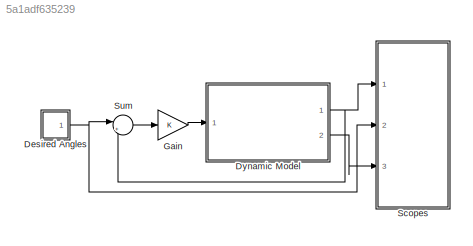
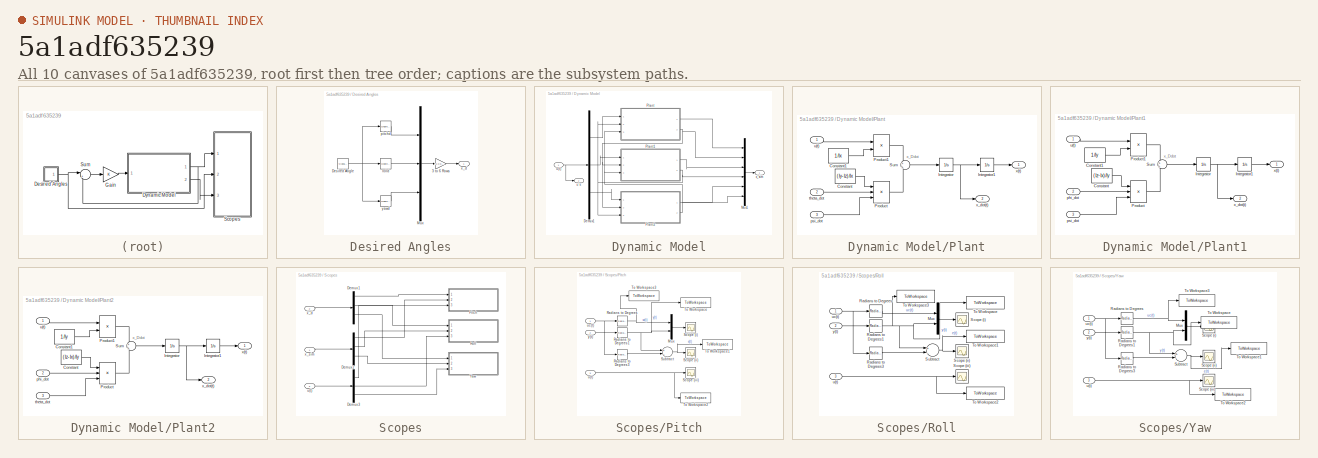
[diagram: thumbnail index - all 10 canvases of the model, root first then tree order]
MODEL slx_5a1adf635239
KIND model
CONFIG AbsTol = auto
CONFIG EnableMultiTasking = off
CONFIG FixedStep = auto
CONFIG MaxStep = auto
CONFIG MinStep = auto
CONFIG RelTol = 1e-3
CONFIG SampleTimeConstraint = Unconstrained
CONFIG Solver = VariableStepAuto
CONFIG SolverName = VariableStepAuto
CONFIG StartTime = 0.0
CONFIG StopTime = 100
BLOCK [SubSystem] Desired Angles
  Ports = [0, 1]
  RequestExecContextInheritance = off
BLOCK [Gain] Desired Angles/3 to 6 Rows
  Gain = [1 0 0; 0 0 0; 0 1 0; 0 0 0; 0 0 1; 0 0 0];
  Multiplication = Matrix(K*u)
  OutDataTypeStr = Inherit: Inherit via internal rule
  ParamDataTypeStr = Inherit: Inherit via internal rule
  SaturateOnIntegerOverflow = off
BLOCK [SignalGenerator] Desired Angles/Desired Angle
  Amplitude = 5
  Frequency = 0.05
  Ports = [0, 1]
  WaveForm = square
BLOCK [Mux] Desired Angles/Mux
  DisplayOption = bar
  Inputs = 3
  Ports = [3, 1]
BLOCK [Reference] Desired Angles/pitchd  REF=simulink_extras/Transformations/Degrees to
Radians
  Ports = [1, 1]
  SourceBlock = simulink_extras/Transformations/Degrees to\nRadians
  SourceProductBaseCode = SL
  SourceProductName = Simulink
  SourceType = DegreesToRadians
BLOCK [Reference] Desired Angles/rolld  REF=simulink_extras/Transformations/Degrees to
Radians
  Ports = [1, 1]
  SourceBlock = simulink_extras/Transformations/Degrees to\nRadians
  SourceProductBaseCode = SL
  SourceProductName = Simulink
  SourceType = DegreesToRadians
BLOCK [Outport] Desired Angles/x_d
  IconDisplay = Port number
  VectorParamsAs1DForOutWhenUnconnected = off
BLOCK [Reference] Desired Angles/yawd  REF=simulink_extras/Transformations/Degrees to
Radians
  Ports = [1, 1]
  SourceBlock = simulink_extras/Transformations/Degrees to\nRadians
  SourceProductBaseCode = SL
  SourceProductName = Simulink
  SourceType = DegreesToRadians
BLOCK [SubSystem] Dynamic Model
  Ports = [1, 2]
  RequestExecContextInheritance = off
BLOCK [Demux] Dynamic Model/Demux1
  DisplayOption = bar
  Outputs = 3
  Ports = [1, 3]
BLOCK [Mux] Dynamic Model/Mux1
  DisplayOption = bar
  Inputs = 6
  Ports = [6, 1]
BLOCK [SubSystem] Dynamic Model/Plant
  Ports = [3, 2]
  RequestExecContextInheritance = off
BLOCK [Constant] Dynamic Model/Plant/Constant
  Value = (Iy-Iz)/Ix
BLOCK [Constant] Dynamic Model/Plant/Constant1
  Value = 1/Ix
BLOCK [Integrator] Dynamic Model/Plant/Integrator
  Ports = [1, 1]
BLOCK [Integrator] Dynamic Model/Plant/Integrator1
  Ports = [1, 1]
BLOCK [Product] Dynamic Model/Plant/Product
  InputSameDT = off
  Inputs = 3
  OutDataTypeStr = Inherit: Inherit via internal rule
  Ports = [3, 1]
  RndMeth = Floor
  SaturateOnIntegerOverflow = off
BLOCK [Product] Dynamic Model/Plant/Product1
  InputSameDT = off
  OutDataTypeStr = Inherit: Inherit via internal rule
  Ports = [2, 1]
  RndMeth = Floor
  SaturateOnIntegerOverflow = off
BLOCK [Sum] Dynamic Model/Plant/Sum
  IconShape = round
  InputSameDT = off
  Inputs = +|+
  OutDataTypeStr = Inherit: Inherit via internal rule
  Ports = [2, 1]
  SaturateOnIntegerOverflow = off
BLOCK [Inport] Dynamic Model/Plant/psi_dot
  IconDisplay = Port number
  Port = 3
BLOCK [Inport] Dynamic Model/Plant/theta_dot
  IconDisplay = Port number
  Port = 2
BLOCK [Inport] Dynamic Model/Plant/u(t)
  IconDisplay = Port number
BLOCK [Outport] Dynamic Model/Plant/x(t)
  IconDisplay = Port number
  VectorParamsAs1DForOutWhenUnconnected = off
BLOCK [Outport] Dynamic Model/Plant/x_dot(t)
  IconDisplay = Port number
  Port = 2
  VectorParamsAs1DForOutWhenUnconnected = off
BLOCK [SubSystem] Dynamic Model/Plant1
  Ports = [3, 2]
  RequestExecContextInheritance = off
BLOCK [Constant] Dynamic Model/Plant1/Constant
  Value = (Iz-Ix)/Iy
BLOCK [Constant] Dynamic Model/Plant1/Constant1
  Value = 1/Iy
BLOCK [Integrator] Dynamic Model/Plant1/Integrator
  Ports = [1, 1]
BLOCK [Integrator] Dynamic Model/Plant1/Integrator1
  Ports = [1, 1]
BLOCK [Product] Dynamic Model/Plant1/Product
  InputSameDT = off
  Inputs = 3
  OutDataTypeStr = Inherit: Inherit via internal rule
  Ports = [3, 1]
  RndMeth = Floor
  SaturateOnIntegerOverflow = off
BLOCK [Product] Dynamic Model/Plant1/Product1
  InputSameDT = off
  OutDataTypeStr = Inherit: Inherit via internal rule
  Ports = [2, 1]
  RndMeth = Floor
  SaturateOnIntegerOverflow = off
BLOCK [Sum] Dynamic Model/Plant1/Sum
  IconShape = round
  InputSameDT = off
  Inputs = +|+
  OutDataTypeStr = Inherit: Inherit via internal rule
  Ports = [2, 1]
  SaturateOnIntegerOverflow = off
BLOCK [Inport] Dynamic Model/Plant1/phi_dot
  IconDisplay = Port number
  Port = 2
BLOCK [Inport] Dynamic Model/Plant1/psi_dot
  IconDisplay = Port number
  Port = 3
BLOCK [Inport] Dynamic Model/Plant1/u(t)
  IconDisplay = Port number
BLOCK [Outport] Dynamic Model/Plant1/x(t)
  IconDisplay = Port number
  VectorParamsAs1DForOutWhenUnconnected = off
BLOCK [Outport] Dynamic Model/Plant1/x_dot(t)
  IconDisplay = Port number
  Port = 2
  VectorParamsAs1DForOutWhenUnconnected = off
BLOCK [SubSystem] Dynamic Model/Plant2
  Ports = [3, 2]
  RequestExecContextInheritance = off
BLOCK [Constant] Dynamic Model/Plant2/Constant
  Value = (Iz-Ix)/Iy
BLOCK [Constant] Dynamic Model/Plant2/Constant1
  Value = 1/Iy
BLOCK [Integrator] Dynamic Model/Plant2/Integrator
  Ports = [1, 1]
BLOCK [Integrator] Dynamic Model/Plant2/Integrator1
  Ports = [1, 1]
BLOCK [Product] Dynamic Model/Plant2/Product
  InputSameDT = off
  Inputs = 3
  OutDataTypeStr = Inherit: Inherit via internal rule
  Ports = [3, 1]
  RndMeth = Floor
  SaturateOnIntegerOverflow = off
BLOCK [Product] Dynamic Model/Plant2/Product1
  InputSameDT = off
  OutDataTypeStr = Inherit: Inherit via internal rule
  Ports = [2, 1]
  RndMeth = Floor
  SaturateOnIntegerOverflow = off
BLOCK [Sum] Dynamic Model/Plant2/Sum
  IconShape = round
  InputSameDT = off
  Inputs = +|+
  OutDataTypeStr = Inherit: Inherit via internal rule
  Ports = [2, 1]
  SaturateOnIntegerOverflow = off
BLOCK [Inport] Dynamic Model/Plant2/phi_dot
  IconDisplay = Port number
  Port = 2
BLOCK [Inport] Dynamic Model/Plant2/theta_dot
  IconDisplay = Port number
  Port = 3
BLOCK [Inport] Dynamic Model/Plant2/u(t)
  IconDisplay = Port number
BLOCK [Outport] Dynamic Model/Plant2/x(t)
  IconDisplay = Port number
  VectorParamsAs1DForOutWhenUnconnected = off
BLOCK [Outport] Dynamic Model/Plant2/x_dot(t)
  IconDisplay = Port number
  Port = 2
  VectorParamsAs1DForOutWhenUnconnected = off
BLOCK [Outport] Dynamic Model/u's
  IconDisplay = Port number
  Port = 2
  VectorParamsAs1DForOutWhenUnconnected = off
BLOCK [Inport] Dynamic Model/u(t)
  IconDisplay = Port number
BLOCK [Outport] Dynamic Model/x_sim
  IconDisplay = Port number
  VectorParamsAs1DForOutWhenUnconnected = off
BLOCK [Gain] Gain
  Gain = K
  Multiplication = Matrix(K*u)
  OutDataTypeStr = Inherit: Inherit via internal rule
  ParamDataTypeStr = Inherit: Inherit via internal rule
  SaturateOnIntegerOverflow = off
BLOCK [SubSystem] Scopes
  Ports = [3]
  RequestExecContextInheritance = off
BLOCK [Demux] Scopes/Demux1
  DisplayOption = bar
  Outputs = 6
  Ports = [1, 6]
BLOCK [Demux] Scopes/Demux2
  DisplayOption = bar
  Outputs = 6
  Ports = [1, 6]
BLOCK [Demux] Scopes/Demux3
  DisplayOption = bar
  Outputs = 3
  Ports = [1, 3]
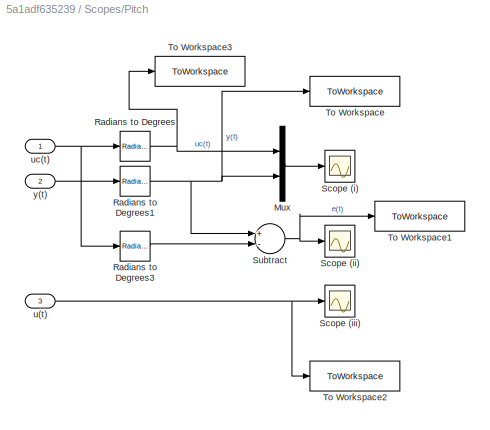
BLOCK [SubSystem] Scopes/Pitch
  Ports = [3]
  RequestExecContextInheritance = off
BLOCK [Mux] Scopes/Pitch/Mux
  DisplayOption = bar
  Inputs = 2
  Ports = [2, 1]
BLOCK [Reference] Scopes/Pitch/Radians to Degrees  REF=simulink_extras/Transformations/Radians
to Degrees
  Ports = [1, 1]
  SourceBlock = simulink_extras/Transformations/Radians\nto Degrees
  SourceProductBaseCode = SL
  SourceProductName = Simulink
  SourceType = RadiansToDegrees
BLOCK [Reference] Scopes/Pitch/Radians to Degrees1  REF=simulink_extras/Transformations/Radians
to Degrees
  Ports = [1, 1]
  SourceBlock = simulink_extras/Transformations/Radians\nto Degrees
  SourceProductBaseCode = SL
  SourceProductName = Simulink
  SourceType = RadiansToDegrees
BLOCK [Reference] Scopes/Pitch/Radians to Degrees3  REF=simulink_extras/Transformations/Radians
to Degrees
  Ports = [1, 1]
  SourceBlock = simulink_extras/Transformations/Radians\nto Degrees
  SourceProductBaseCode = SL
  SourceProductName = Simulink
  SourceType = RadiansToDegrees
BLOCK [Scope] Scopes/Pitch/Scope (i)
  Floating = off
  NumInputPorts = 1
  Ports = [1]
  ScopeSpecificationString = Simulink.scopes.TimeScopeBlockCfg('CurrentConfiguration', extmgr.ConfigurationSet(extmgr.Configuration('Core','General UI',true),extmgr.Configuration('Core','Source UI',true),extmgr.Configuration('Sources','WiredSimulink',true,'DataLoggingVariableName','ScopeData1'),extmgr.Configuration('Visuals','Time Domain',true,'SerializedDisplays',{struct('MinYLimReal','-7.2861','MaxYLimReal','6.36958','YLabe...<+1465ch>
BLOCK [Scope] Scopes/Pitch/Scope (ii)
  Floating = off
  NumInputPorts = 1
  Ports = [1]
  ScopeSpecificationString = Simulink.scopes.TimeScopeBlockCfg('CurrentConfiguration', extmgr.ConfigurationSet(extmgr.Configuration('Core','General UI',true),extmgr.Configuration('Core','Source UI',true),extmgr.Configuration('Sources','WiredSimulink',true),extmgr.Configuration('Visuals','Time Domain',true,'SerializedDisplays',{struct('MinYLimReal','-12.49898','MaxYLimReal','12.49862','YLabelReal','','MinYLimMag','0.00000','Ma...<+1381ch>
BLOCK [Scope] Scopes/Pitch/Scope (iii)
  Floating = off
  NumInputPorts = 1
  Ports = [1]
  ScopeSpecificationString = Simulink.scopes.TimeScopeBlockCfg('CurrentConfiguration', extmgr.ConfigurationSet(extmgr.Configuration('Core','General UI',true),extmgr.Configuration('Core','Source UI',true),extmgr.Configuration('Sources','WiredSimulink',true,'DataLoggingVariableName','ScopeData2'),extmgr.Configuration('Visuals','Time Domain',true,'SerializedDisplays',{struct('MinYLimReal','-0.54786','MaxYLimReal','0.53981','YLab...<+1413ch>
BLOCK [Sum] Scopes/Pitch/Subtract
  InputSameDT = off
  Inputs = +-
  OutDataTypeStr = Inherit: Inherit via internal rule
  Ports = [2, 1]
  SaturateOnIntegerOverflow = off
BLOCK [ToWorkspace] Scopes/Pitch/To Workspace
  FixptAsFi = on
  MaxDataPoints = inf
  Ports = [1]
  SampleTime = -1
  VariableName = angle1
BLOCK [ToWorkspace] Scopes/Pitch/To Workspace1
  FixptAsFi = on
  MaxDataPoints = inf
  Ports = [1]
  SampleTime = -1
  VariableName = error1
BLOCK [ToWorkspace] Scopes/Pitch/To Workspace2
  FixptAsFi = on
  MaxDataPoints = inf
  Ports = [1]
  SampleTime = -1
  VariableName = input1
BLOCK [ToWorkspace] Scopes/Pitch/To Workspace3
  FixptAsFi = on
  MaxDataPoints = inf
  Ports = [1]
  SampleTime = -1
  VariableName = uc1
BLOCK [Inport] Scopes/Pitch/u(t)
  IconDisplay = Port number
  Port = 3
BLOCK [Inport] Scopes/Pitch/uc(t)
  IconDisplay = Port number
BLOCK [Inport] Scopes/Pitch/y(t)
  IconDisplay = Port number
  Port = 2
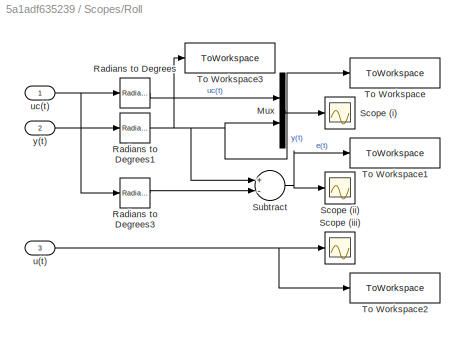
BLOCK [SubSystem] Scopes/Roll
  Ports = [3]
  RequestExecContextInheritance = off
BLOCK [Mux] Scopes/Roll/Mux
  DisplayOption = bar
  Inputs = 2
  Ports = [2, 1]
BLOCK [Reference] Scopes/Roll/Radians to Degrees  REF=simulink_extras/Transformations/Radians
to Degrees
  Ports = [1, 1]
  SourceBlock = simulink_extras/Transformations/Radians\nto Degrees
  SourceProductBaseCode = SL
  SourceProductName = Simulink
  SourceType = RadiansToDegrees
BLOCK [Reference] Scopes/Roll/Radians to Degrees1  REF=simulink_extras/Transformations/Radians
to Degrees
  Ports = [1, 1]
  SourceBlock = simulink_extras/Transformations/Radians\nto Degrees
  SourceProductBaseCode = SL
  SourceProductName = Simulink
  SourceType = RadiansToDegrees
BLOCK [Reference] Scopes/Roll/Radians to Degrees3  REF=simulink_extras/Transformations/Radians
to Degrees
  Ports = [1, 1]
  SourceBlock = simulink_extras/Transformations/Radians\nto Degrees
  SourceProductBaseCode = SL
  SourceProductName = Simulink
  SourceType = RadiansToDegrees
BLOCK [Scope] Scopes/Roll/Scope (i)
  Floating = off
  NumInputPorts = 1
  Ports = [1]
  ScopeSpecificationString = Simulink.scopes.TimeScopeBlockCfg('CurrentConfiguration', extmgr.ConfigurationSet(extmgr.Configuration('Core','General UI',true),extmgr.Configuration('Core','Source UI',true),extmgr.Configuration('Sources','WiredSimulink',true,'DataLoggingVariableName','ScopeData1'),extmgr.Configuration('Visuals','Time Domain',true,'SerializedDisplays',{struct('MinYLimReal','-389.10863','MaxYLimReal','460.40503','...<+1481ch>
BLOCK [Scope] Scopes/Roll/Scope (ii)
  Floating = off
  NumInputPorts = 1
  Ports = [1]
  ScopeSpecificationString = Simulink.scopes.TimeScopeBlockCfg('CurrentConfiguration', extmgr.ConfigurationSet(extmgr.Configuration('Core','General UI',true),extmgr.Configuration('Core','Source UI',true),extmgr.Configuration('Sources','WiredSimulink',true),extmgr.Configuration('Visuals','Time Domain',true,'SerializedDisplays',{struct('MinYLimReal','-5.43198','MaxYLimReal','6.60364','YLabelReal','','MinYLimMag','0.00000','MaxY...<+1374ch>
BLOCK [Scope] Scopes/Roll/Scope (iii)
  Floating = off
  NumInputPorts = 1
  Ports = [1]
  ScopeSpecificationString = Simulink.scopes.TimeScopeBlockCfg('CurrentConfiguration', extmgr.ConfigurationSet(extmgr.Configuration('Core','General UI',true),extmgr.Configuration('Core','Source UI',true),extmgr.Configuration('Sources','WiredSimulink',true,'DataLoggingVariableName','ScopeData2'),extmgr.Configuration('Visuals','Time Domain',true,'SerializedDisplays',{struct('MinYLimReal','-0.03653','MaxYLimReal','0.03605','YLab...<+1413ch>
BLOCK [Sum] Scopes/Roll/Subtract
  InputSameDT = off
  Inputs = +-
  OutDataTypeStr = Inherit: Inherit via internal rule
  Ports = [2, 1]
  SaturateOnIntegerOverflow = off
BLOCK [ToWorkspace] Scopes/Roll/To Workspace
  FixptAsFi = on
  MaxDataPoints = inf
  Ports = [1]
  SampleTime = -1
  VariableName = angle2
BLOCK [ToWorkspace] Scopes/Roll/To Workspace1
  FixptAsFi = on
  MaxDataPoints = inf
  Ports = [1]
  SampleTime = -1
  VariableName = error2
BLOCK [ToWorkspace] Scopes/Roll/To Workspace2
  FixptAsFi = on
  MaxDataPoints = inf
  Ports = [1]
  SampleTime = -1
  VariableName = input2
BLOCK [ToWorkspace] Scopes/Roll/To Workspace3
  FixptAsFi = on
  MaxDataPoints = inf
  Ports = [1]
  SampleTime = -1
  VariableName = uc2
BLOCK [Inport] Scopes/Roll/u(t)
  IconDisplay = Port number
  Port = 3
BLOCK [Inport] Scopes/Roll/uc(t)
  IconDisplay = Port number
BLOCK [Inport] Scopes/Roll/y(t)
  IconDisplay = Port number
  Port = 2
BLOCK [SubSystem] Scopes/Yaw
  Ports = [3]
  RequestExecContextInheritance = off
BLOCK [Mux] Scopes/Yaw/Mux
  DisplayOption = bar
  Inputs = 2
  Ports = [2, 1]
BLOCK [Reference] Scopes/Yaw/Radians to Degrees  REF=simulink_extras/Transformations/Radians
to Degrees
  Ports = [1, 1]
  SourceBlock = simulink_extras/Transformations/Radians\nto Degrees
  SourceProductBaseCode = SL
  SourceProductName = Simulink
  SourceType = RadiansToDegrees
BLOCK [Reference] Scopes/Yaw/Radians to Degrees1  REF=simulink_extras/Transformations/Radians
to Degrees
  Ports = [1, 1]
  SourceBlock = simulink_extras/Transformations/Radians\nto Degrees
  SourceProductBaseCode = SL
  SourceProductName = Simulink
  SourceType = RadiansToDegrees
BLOCK [Reference] Scopes/Yaw/Radians to Degrees3  REF=simulink_extras/Transformations/Radians
to Degrees
  Ports = [1, 1]
  SourceBlock = simulink_extras/Transformations/Radians\nto Degrees
  SourceProductBaseCode = SL
  SourceProductName = Simulink
  SourceType = RadiansToDegrees
BLOCK [Scope] Scopes/Yaw/Scope (i)
  Floating = off
  NumInputPorts = 1
  Ports = [1]
  ScopeSpecificationString = Simulink.scopes.TimeScopeBlockCfg('CurrentConfiguration', extmgr.ConfigurationSet(extmgr.Configuration('Core','General UI',true),extmgr.Configuration('Core','Source UI',true),extmgr.Configuration('Sources','WiredSimulink',true,'DataLoggingVariableName','ScopeData1'),extmgr.Configuration('Visuals','Time Domain',true,'SerializedDisplays',{struct('MinYLimReal','-360.74361','MaxYLimReal','381.48509','...<+1481ch>
BLOCK [Scope] Scopes/Yaw/Scope (ii)
  Floating = off
  NumInputPorts = 1
  Ports = [1]
  ScopeSpecificationString = Simulink.scopes.TimeScopeBlockCfg('CurrentConfiguration', extmgr.ConfigurationSet(extmgr.Configuration('Core','General UI',true),extmgr.Configuration('Core','Source UI',true),extmgr.Configuration('Sources','WiredSimulink',true),extmgr.Configuration('Visuals','Time Domain',true,'SerializedDisplays',{struct('MinYLimReal','-5.43198','MaxYLimReal','6.60364','YLabelReal','','MinYLimMag','0.00000','MaxY...<+1374ch>
BLOCK [Scope] Scopes/Yaw/Scope (iii)
  Floating = off
  NumInputPorts = 1
  Ports = [1]
  ScopeSpecificationString = Simulink.scopes.TimeScopeBlockCfg('CurrentConfiguration', extmgr.ConfigurationSet(extmgr.Configuration('Core','General UI',true),extmgr.Configuration('Core','Source UI',true),extmgr.Configuration('Sources','WiredSimulink',true,'DataLoggingVariableName','ScopeData2'),extmgr.Configuration('Visuals','Time Domain',true,'SerializedDisplays',{struct('MinYLimReal','-0.03653','MaxYLimReal','0.03605','YLab...<+1413ch>
BLOCK [Sum] Scopes/Yaw/Subtract
  InputSameDT = off
  Inputs = +-
  OutDataTypeStr = Inherit: Inherit via internal rule
  Ports = [2, 1]
  SaturateOnIntegerOverflow = off
BLOCK [ToWorkspace] Scopes/Yaw/To Workspace
  FixptAsFi = on
  MaxDataPoints = inf
  Ports = [1]
  SampleTime = -1
  VariableName = angle3
BLOCK [ToWorkspace] Scopes/Yaw/To Workspace1
  FixptAsFi = on
  MaxDataPoints = inf
  Ports = [1]
  SampleTime = -1
  VariableName = error3
BLOCK [ToWorkspace] Scopes/Yaw/To Workspace2
  FixptAsFi = on
  MaxDataPoints = inf
  Ports = [1]
  SampleTime = -1
  VariableName = input3
BLOCK [ToWorkspace] Scopes/Yaw/To Workspace3
  FixptAsFi = on
  MaxDataPoints = inf
  Ports = [1]
  SampleTime = -1
  VariableName = uc3
BLOCK [Inport] Scopes/Yaw/u(t)
  IconDisplay = Port number
  Port = 3
BLOCK [Inport] Scopes/Yaw/uc(t)
  IconDisplay = Port number
BLOCK [Inport] Scopes/Yaw/y(t)
  IconDisplay = Port number
  Port = 2
BLOCK [Inport] Scopes/u(t)
  IconDisplay = Port number
  Port = 3
BLOCK [Inport] Scopes/x_d
  IconDisplay = Port number
  Port = 2
BLOCK [Inport] Scopes/x_sim
  IconDisplay = Port number
BLOCK [Sum] Sum
  IconShape = round
  InputSameDT = off
  Inputs = |+-
  OutDataTypeStr = Inherit: Inherit via internal rule
  Ports = [2, 1]
  SaturateOnIntegerOverflow = off
ANNOTATION Dynamic Model/Plant: x_Ddot
ANNOTATION Dynamic Model/Plant1: x_Ddot
ANNOTATION Dynamic Model/Plant2: x_Ddot
LINE Desired Angles/3 to 6 Rows:1 -> Desired Angles/x_d:1
NET Desired Angles/Desired Angle:1 -> Desired Angles/pitchd:1, Desired Angles/rolld:1, Desired Angles/yawd:1
LINE Desired Angles/Mux:1 -> Desired Angles/3 to 6 Rows:1
LINE Desired Angles/pitchd:1 -> Desired Angles/Mux:1
LINE Desired Angles/rolld:1 -> Desired Angles/Mux:2
LINE Desired Angles/yawd:1 -> Desired Angles/Mux:3
NET Desired Angles:1 -> Scopes:2, Sum:1
LINE Dynamic Model/Demux1:1 -> Dynamic Model/Plant:1
LINE Dynamic Model/Demux1:2 -> Dynamic Model/Plant1:1
LINE Dynamic Model/Demux1:3 -> Dynamic Model/Plant2:1
LINE Dynamic Model/Mux1:1 -> Dynamic Model/x_sim:1
LINE Dynamic Model/Plant/Constant1:1 -> Dynamic Model/Plant/Product1:2
LINE Dynamic Model/Plant/Constant:1 -> Dynamic Model/Plant/Product:1
LINE Dynamic Model/Plant/Integrator1:1 -> Dynamic Model/Plant/x(t):1
NET Dynamic Model/Plant/Integrator:1 -> Dynamic Model/Plant/Integrator1:1, Dynamic Model/Plant/x_dot(t):1
LINE Dynamic Model/Plant/Product1:1 -> Dynamic Model/Plant/Sum:1
LINE Dynamic Model/Plant/Product:1 -> Dynamic Model/Plant/Sum:2
LINE Dynamic Model/Plant/Sum:1 -> Dynamic Model/Plant/Integrator:1
LINE Dynamic Model/Plant/psi_dot:1 -> Dynamic Model/Plant/Product:3
LINE Dynamic Model/Plant/theta_dot:1 -> Dynamic Model/Plant/Product:2
LINE Dynamic Model/Plant/u(t):1 -> Dynamic Model/Plant/Product1:1
LINE Dynamic Model/Plant1/Constant1:1 -> Dynamic Model/Plant1/Product1:2
LINE Dynamic Model/Plant1/Constant:1 -> Dynamic Model/Plant1/Product:1
LINE Dynamic Model/Plant1/Integrator1:1 -> Dynamic Model/Plant1/x(t):1
NET Dynamic Model/Plant1/Integrator:1 -> Dynamic Model/Plant1/Integrator1:1, Dynamic Model/Plant1/x_dot(t):1
LINE Dynamic Model/Plant1/Product1:1 -> Dynamic Model/Plant1/Sum:1
LINE Dynamic Model/Plant1/Product:1 -> Dynamic Model/Plant1/Sum:2
LINE Dynamic Model/Plant1/Sum:1 -> Dynamic Model/Plant1/Integrator:1
LINE Dynamic Model/Plant1/phi_dot:1 -> Dynamic Model/Plant1/Product:2
LINE Dynamic Model/Plant1/psi_dot:1 -> Dynamic Model/Plant1/Product:3
LINE Dynamic Model/Plant1/u(t):1 -> Dynamic Model/Plant1/Product1:1
LINE Dynamic Model/Plant1:1 -> Dynamic Model/Mux1:3
NET Dynamic Model/Plant1:2 -> Dynamic Model/Mux1:4, Dynamic Model/Plant2:3, Dynamic Model/Plant:2
LINE Dynamic Model/Plant2/Constant1:1 -> Dynamic Model/Plant2/Product1:2
LINE Dynamic Model/Plant2/Constant:1 -> Dynamic Model/Plant2/Product:1
LINE Dynamic Model/Plant2/Integrator1:1 -> Dynamic Model/Plant2/x(t):1
NET Dynamic Model/Plant2/Integrator:1 -> Dynamic Model/Plant2/Integrator1:1, Dynamic Model/Plant2/x_dot(t):1
LINE Dynamic Model/Plant2/Product1:1 -> Dynamic Model/Plant2/Sum:1
LINE Dynamic Model/Plant2/Product:1 -> Dynamic Model/Plant2/Sum:2
LINE Dynamic Model/Plant2/Sum:1 -> Dynamic Model/Plant2/Integrator:1
LINE Dynamic Model/Plant2/phi_dot:1 -> Dynamic Model/Plant2/Product:2
LINE Dynamic Model/Plant2/theta_dot:1 -> Dynamic Model/Plant2/Product:3
LINE Dynamic Model/Plant2/u(t):1 -> Dynamic Model/Plant2/Product1:1
LINE Dynamic Model/Plant2:1 -> Dynamic Model/Mux1:5
NET Dynamic Model/Plant2:2 -> Dynamic Model/Mux1:6, Dynamic Model/Plant1:3, Dynamic Model/Plant:3
LINE Dynamic Model/Plant:1 -> Dynamic Model/Mux1:1
NET Dynamic Model/Plant:2 -> Dynamic Model/Mux1:2, Dynamic Model/Plant1:2, Dynamic Model/Plant2:2
NET Dynamic Model/u(t):1 -> Dynamic Model/Demux1:1, Dynamic Model/u's:1
NET Dynamic Model:1 -> Scopes:1, Sum:2
LINE Dynamic Model:2 -> Scopes:3
LINE Gain:1 -> Dynamic Model:1
LINE Scopes/Demux1:1 -> Scopes/Pitch:1
LINE Scopes/Demux1:3 -> Scopes/Roll:1
LINE Scopes/Demux1:5 -> Scopes/Yaw:1
LINE Scopes/Demux2:1 -> Scopes/Pitch:2
LINE Scopes/Demux2:3 -> Scopes/Roll:2
LINE Scopes/Demux2:5 -> Scopes/Yaw:2
LINE Scopes/Demux3:1 -> Scopes/Pitch:3
LINE Scopes/Demux3:2 -> Scopes/Roll:3
LINE Scopes/Demux3:3 -> Scopes/Yaw:3
LINE Scopes/Pitch/Mux:1 -> Scopes/Pitch/Scope (i):1
NET Scopes/Pitch/Radians to Degrees1:1 -> Scopes/Pitch/Mux:2, Scopes/Pitch/Subtract:1, Scopes/Pitch/To Workspace:1
LINE Scopes/Pitch/Radians to Degrees3:1 -> Scopes/Pitch/Subtract:2
NET Scopes/Pitch/Radians to Degrees:1 -> Scopes/Pitch/Mux:1, Scopes/Pitch/To Workspace3:1
NET Scopes/Pitch/Subtract:1 -> Scopes/Pitch/Scope (ii):1, Scopes/Pitch/To Workspace1:1
NET Scopes/Pitch/u(t):1 -> Scopes/Pitch/Scope (iii):1, Scopes/Pitch/To Workspace2:1
NET Scopes/Pitch/uc(t):1 -> Scopes/Pitch/Radians to Degrees3:1, Scopes/Pitch/Radians to Degrees:1
LINE Scopes/Pitch/y(t):1 -> Scopes/Pitch/Radians to Degrees1:1
LINE Scopes/Roll/Mux:1 -> Scopes/Roll/Scope (i):1
NET Scopes/Roll/Radians to Degrees1:1 -> Scopes/Roll/Mux:2, Scopes/Roll/Subtract:1, Scopes/Roll/To Workspace3:1, Scopes/Roll/To Workspace:1
LINE Scopes/Roll/Radians to Degrees3:1 -> Scopes/Roll/Subtract:2
LINE Scopes/Roll/Radians to Degrees:1 -> Scopes/Roll/Mux:1
NET Scopes/Roll/Subtract:1 -> Scopes/Roll/Scope (ii):1, Scopes/Roll/To Workspace1:1
NET Scopes/Roll/u(t):1 -> Scopes/Roll/Scope (iii):1, Scopes/Roll/To Workspace2:1
NET Scopes/Roll/uc(t):1 -> Scopes/Roll/Radians to Degrees3:1, Scopes/Roll/Radians to Degrees:1
LINE Scopes/Roll/y(t):1 -> Scopes/Roll/Radians to Degrees1:1
LINE Scopes/Yaw/Mux:1 -> Scopes/Yaw/Scope (i):1
NET Scopes/Yaw/Radians to Degrees1:1 -> Scopes/Yaw/Mux:2, Scopes/Yaw/Subtract:1, Scopes/Yaw/To Workspace:1
LINE Scopes/Yaw/Radians to Degrees3:1 -> Scopes/Yaw/Subtract:2
NET Scopes/Yaw/Radians to Degrees:1 -> Scopes/Yaw/Mux:1, Scopes/Yaw/To Workspace3:1
NET Scopes/Yaw/Subtract:1 -> Scopes/Yaw/Scope (ii):1, Scopes/Yaw/To Workspace1:1
NET Scopes/Yaw/u(t):1 -> Scopes/Yaw/Scope (iii):1, Scopes/Yaw/To Workspace2:1
NET Scopes/Yaw/uc(t):1 -> Scopes/Yaw/Radians to Degrees3:1, Scopes/Yaw/Radians to Degrees:1
LINE Scopes/Yaw/y(t):1 -> Scopes/Yaw/Radians to Degrees1:1
LINE Scopes/u(t):1 -> Scopes/Demux3:1
LINE Scopes/x_d:1 -> Scopes/Demux1:1
LINE Scopes/x_sim:1 -> Scopes/Demux2:1
LINE Sum:1 -> Gain:1
note: NET lines group one-source signal fan-out (src -> all destinations, sorted); 1:1 wires keep LINE
